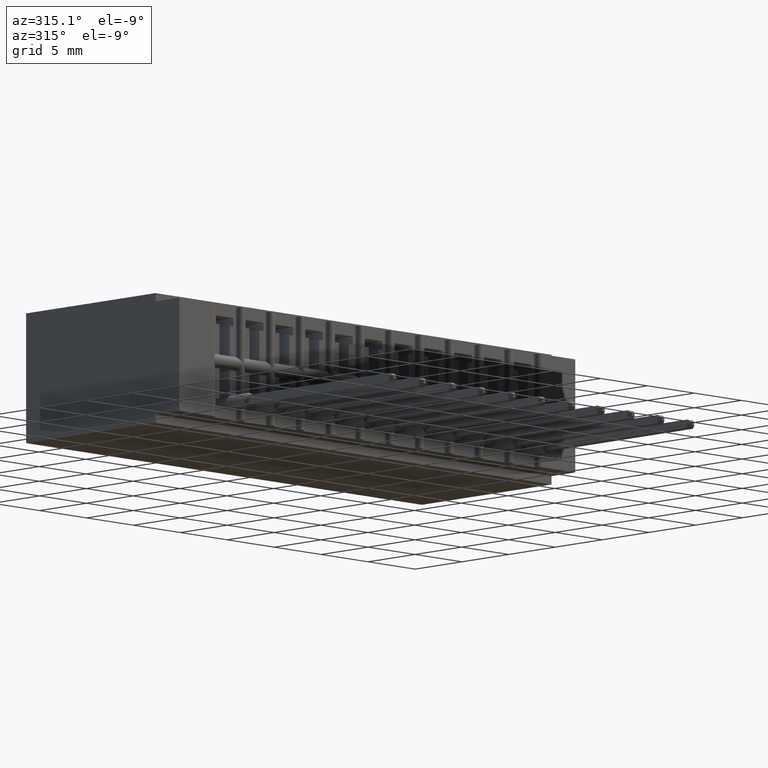
[diagram: clean part render]
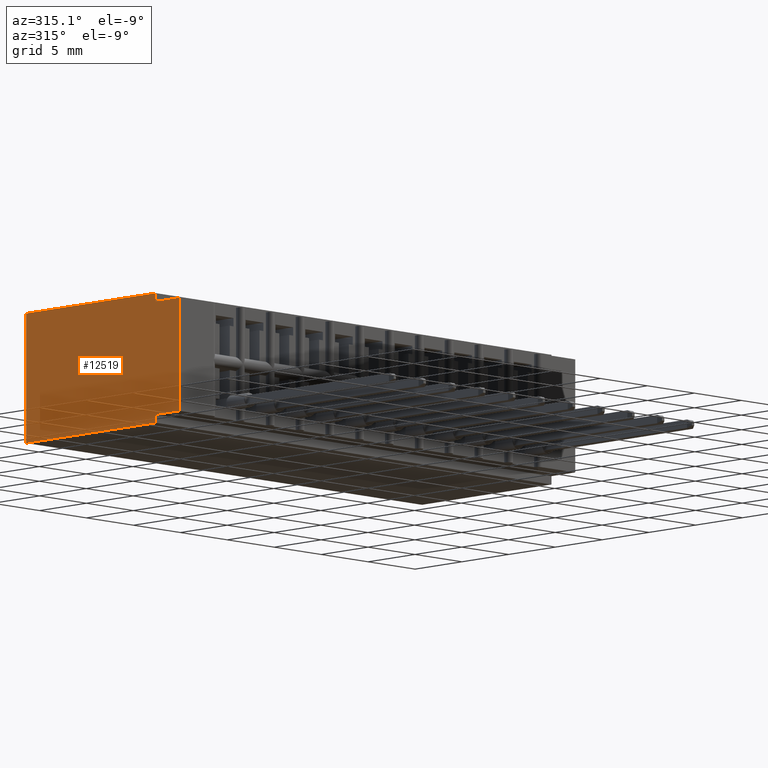
[diagram: same view with one face highlighted and labeled with its STEP entity id]
A machine part, auxiliary view. The second image highlights one B-rep face of the part: STEP entity #12519.
In plain terms, the highlighted planar face has unit normal (1, 0, 0).
Its self-contained STEP definition (entity closure, byte-faithful):
#182 = DIRECTION ( 'NONE',  ( -0.0000000000000000000, -0.0000000000000000000, 1.000000000000000000 ) ) ;
#624 = DIRECTION ( 'NONE',  ( -0.0000000000000000000, -1.000000000000000000, -0.0000000000000000000 ) ) ;
#929 = EDGE_CURVE ( 'NONE', #11416, #2054, #7797, .T. ) ;
#1545 = EDGE_CURVE ( 'NONE', #12809, #1880, #8513, .T. ) ;
#1546 = LINE ( 'NONE', #8050, #10489 ) ;
#1880 = VERTEX_POINT ( 'NONE', #2843 ) ;
#1903 = CARTESIAN_POINT ( 'NONE',  ( 0.0000000000000000000, 0.0000000000000000000, -0.02500000000000000486 ) ) ;
#2054 = VERTEX_POINT ( 'NONE', #20581 ) ;
#2121 = ORIENTED_EDGE ( 'NONE', *, *, #929, .F. ) ;
#2263 = VERTEX_POINT ( 'NONE', #16238 ) ;
#2317 = EDGE_CURVE ( 'NONE', #9380, #12809, #20679, .T. ) ;
#2842 = EDGE_LOOP ( 'NONE', ( #7906, #18111, #17274, #8342, #18175, #13783, #5441, #2121 ) ) ;
#2843 = CARTESIAN_POINT ( 'NONE',  ( 0.0000000000000000000, 0.0000000000000000000, -0.02500000000000000486 ) ) ;
#3261 = CARTESIAN_POINT ( 'NONE',  ( 0.0000000000000000000, 0.6449999999999999067, -0.3900000000000000133 ) ) ;
#3367 = CARTESIAN_POINT ( 'NONE',  ( 0.0000000000000000000, 0.6449999999999999067, 0.0000000000000000000 ) ) ;
#3418 = EDGE_CURVE ( 'NONE', #10381, #2263, #4744, .T. ) ;
#3422 = EDGE_CURVE ( 'NONE', #2054, #2263, #1546, .T. ) ;
#3562 = VECTOR ( 'NONE', #182, 39.37007874015748143 ) ;
#4141 = FACE_OUTER_BOUND ( 'NONE', #2842, .T. ) ;
#4744 = LINE ( 'NONE', #3261, #20330 ) ;
#5394 = CARTESIAN_POINT ( 'NONE',  ( 0.0000000000000000000, 0.1000000000000000056, -0.02500000000000000486 ) ) ;
#5441 = ORIENTED_EDGE ( 'NONE', *, *, #3422, .F. ) ;
#5752 = EDGE_CURVE ( 'NONE', #14810, #9380, #10114, .T. ) ;
#6201 = DIRECTION ( 'NONE',  ( 0.0000000000000000000, 1.000000000000000000, 0.0000000000000000000 ) ) ;
#6630 = CARTESIAN_POINT ( 'NONE',  ( 0.0000000000000000000, 0.0000000000000000000, -0.3649999999999999911 ) ) ;
#6860 = DIRECTION ( 'NONE',  ( 0.0000000000000000000, 0.0000000000000000000, -1.000000000000000000 ) ) ;
#7132 = CARTESIAN_POINT ( 'NONE',  ( 0.0000000000000000000, 0.6449999999999999067, -0.3900000000000000133 ) ) ;
#7156 = VECTOR ( 'NONE', #8415, 39.37007874015748143 ) ;
#7797 = LINE ( 'NONE', #14289, #20803 ) ;
#7896 = CARTESIAN_POINT ( 'NONE',  ( 0.0000000000000000000, 0.0000000000000000000, 0.0000000000000000000 ) ) ;
#7906 = ORIENTED_EDGE ( 'NONE', *, *, #16469, .T. ) ;
#8050 = CARTESIAN_POINT ( 'NONE',  ( 0.0000000000000000000, 0.1000000000000000056, -0.3900000000000000133 ) ) ;
#8342 = ORIENTED_EDGE ( 'NONE', *, *, #5752, .F. ) ;
#8415 = DIRECTION ( 'NONE',  ( -0.0000000000000000000, -1.000000000000000000, -0.0000000000000000000 ) ) ;
#8513 = LINE ( 'NONE', #1903, #12021 ) ;
#9352 = PLANE ( 'NONE',  #20568 ) ;
#9380 = VERTEX_POINT ( 'NONE', #10076 ) ;
#9752 = DIRECTION ( 'NONE',  ( -0.0000000000000000000, -0.0000000000000000000, -1.000000000000000000 ) ) ;
#10076 = CARTESIAN_POINT ( 'NONE',  ( 0.0000000000000000000, 0.1000000000000000056, 0.0000000000000000000 ) ) ;
#10114 = LINE ( 'NONE', #16510, #7156 ) ;
#10381 = VERTEX_POINT ( 'NONE', #7132 ) ;
#10489 = VECTOR ( 'NONE', #9752, 39.37007874015748143 ) ;
#10639 = DIRECTION ( 'NONE',  ( 1.000000000000000000, -0.0000000000000000000, 0.0000000000000000000 ) ) ;
#11060 = VECTOR ( 'NONE', #11092, 39.37007874015748143 ) ;
#11092 = DIRECTION ( 'NONE',  ( -0.0000000000000000000, -0.0000000000000000000, 1.000000000000000000 ) ) ;
#11416 = VERTEX_POINT ( 'NONE', #6630 ) ;
#12021 = VECTOR ( 'NONE', #624, 39.37007874015748143 ) ;
#12440 = DIRECTION ( 'NONE',  ( 0.0000000000000000000, 0.0000000000000000000, -1.000000000000000000 ) ) ;
#12519 = ADVANCED_FACE ( 'NONE', ( #4141 ), #9352, .F. ) ;
#12610 = CARTESIAN_POINT ( 'NONE',  ( 0.0000000000000000000, 0.1000000000000000056, 0.0000000000000000000 ) ) ;
#12809 = VERTEX_POINT ( 'NONE', #5394 ) ;
#13783 = ORIENTED_EDGE ( 'NONE', *, *, #3418, .T. ) ;
#14220 = EDGE_CURVE ( 'NONE', #10381, #14810, #14325, .T. ) ;
#14289 = CARTESIAN_POINT ( 'NONE',  ( 0.0000000000000000000, 0.0000000000000000000, -0.3649999999999999911 ) ) ;
#14325 = LINE ( 'NONE', #3367, #3562 ) ;
#14810 = VERTEX_POINT ( 'NONE', #18236 ) ;
#16238 = CARTESIAN_POINT ( 'NONE',  ( 0.0000000000000000000, 0.1000000000000000056, -0.3900000000000000133 ) ) ;
#16312 = VECTOR ( 'NONE', #6860, 39.37007874015748143 ) ;
#16469 = EDGE_CURVE ( 'NONE', #11416, #1880, #17895, .T. ) ;
#16510 = CARTESIAN_POINT ( 'NONE',  ( 0.0000000000000000000, 0.6449999999999999067, 0.0000000000000000000 ) ) ;
#17274 = ORIENTED_EDGE ( 'NONE', *, *, #2317, .F. ) ;
#17324 = CARTESIAN_POINT ( 'NONE',  ( 0.0000000000000000000, 0.6449999999999999067, 0.0000000000000000000 ) ) ;
#17723 = DIRECTION ( 'NONE',  ( -0.0000000000000000000, -1.000000000000000000, -0.0000000000000000000 ) ) ;
#17895 = LINE ( 'NONE', #7896, #11060 ) ;
#18111 = ORIENTED_EDGE ( 'NONE', *, *, #1545, .F. ) ;
#18175 = ORIENTED_EDGE ( 'NONE', *, *, #14220, .F. ) ;
#18236 = CARTESIAN_POINT ( 'NONE',  ( 0.0000000000000000000, 0.6449999999999999067, 0.0000000000000000000 ) ) ;
#20330 = VECTOR ( 'NONE', #17723, 39.37007874015748143 ) ;
#20568 = AXIS2_PLACEMENT_3D ( 'NONE', #17324, #10639, #12440 ) ;
#20581 = CARTESIAN_POINT ( 'NONE',  ( 0.0000000000000000000, 0.1000000000000000056, -0.3649999999999999911 ) ) ;
#20679 = LINE ( 'NONE', #12610, #16312 ) ;
#20803 = VECTOR ( 'NONE', #6201, 39.37007874015748143 ) ;